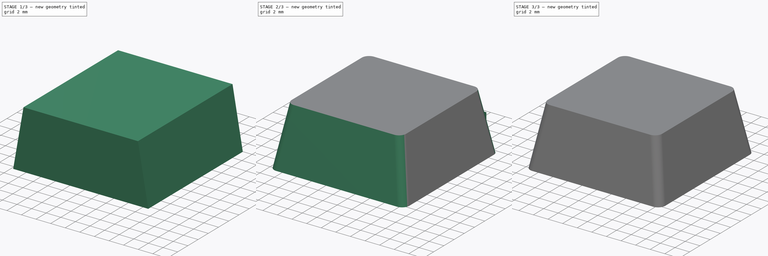
[diagram: build sequence overview — one tinted view per stage of 3, left to right]
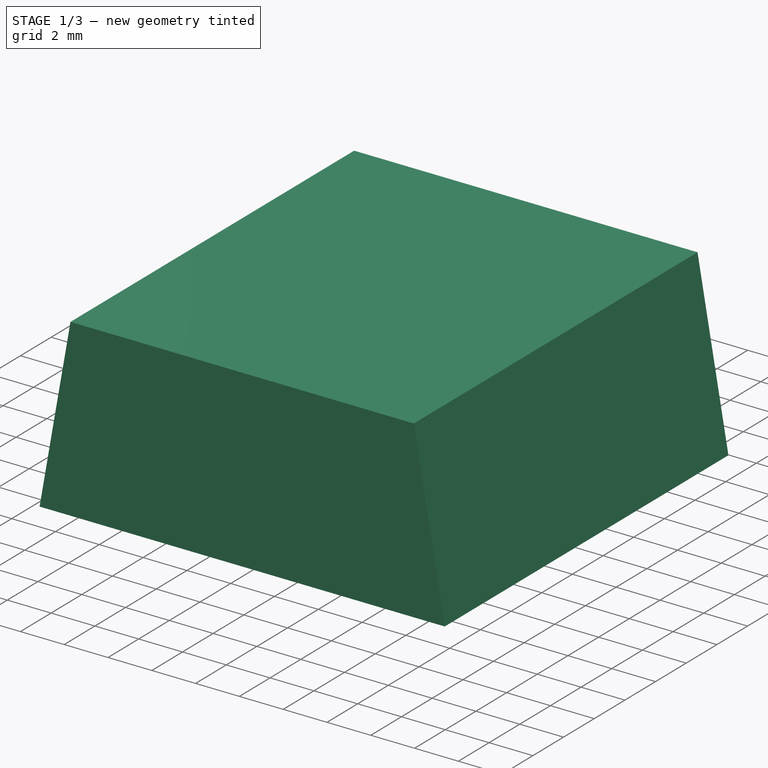
[diagram: stage 1 of 3 — iso view after this stage's code; geometry added in this stage tinted green]
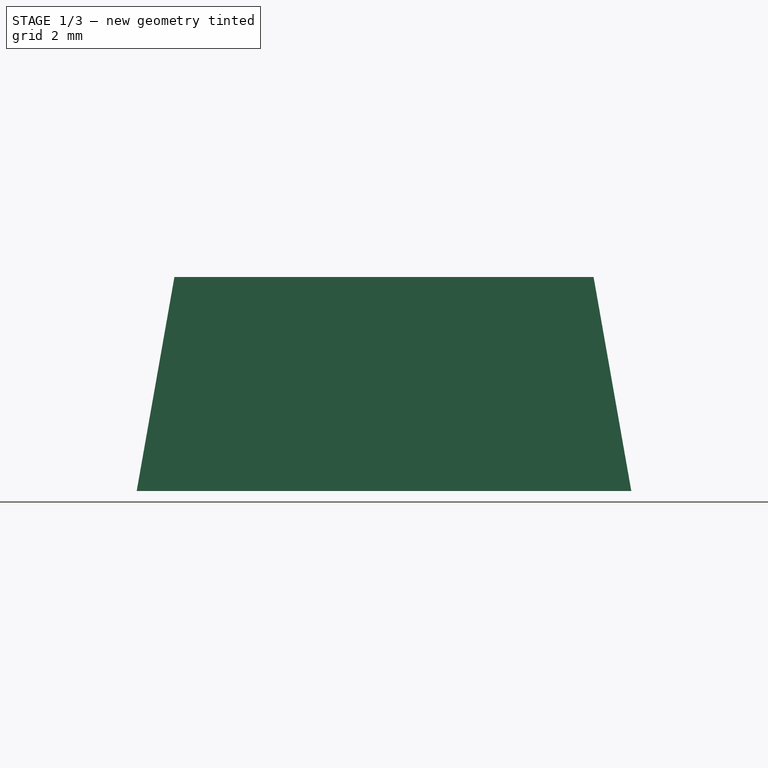
[diagram: stage 1 of 3 — front view after this stage's code; geometry added in this stage tinted green]
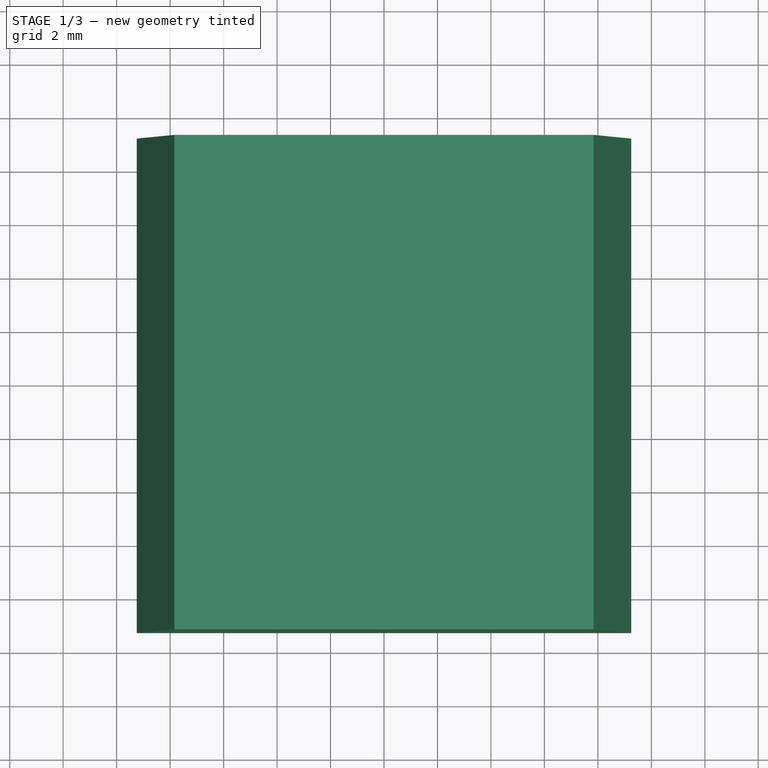
[diagram: stage 1 of 3 — top view after this stage's code; geometry added in this stage tinted green]
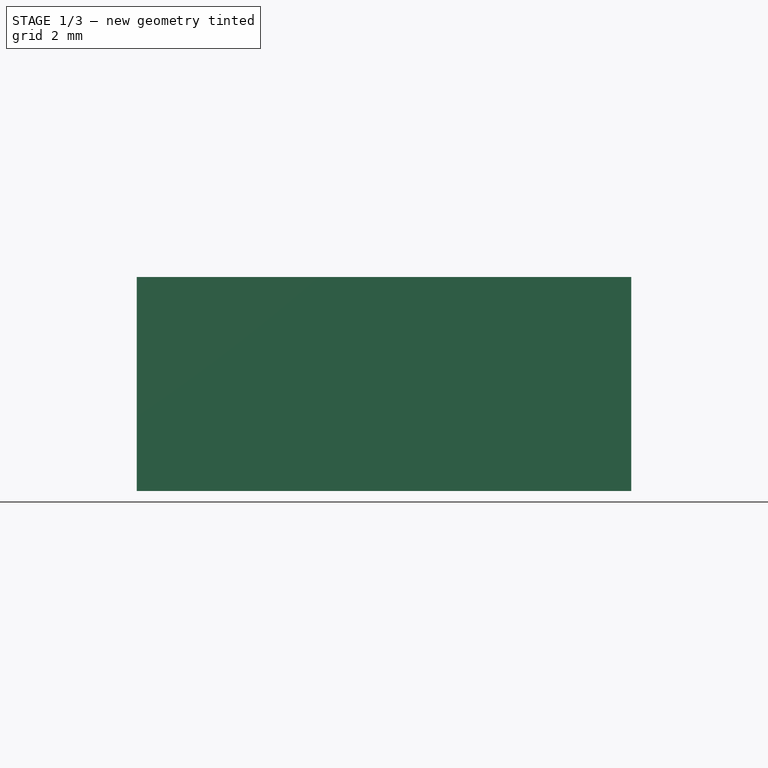
[diagram: stage 1 of 3 — right view after this stage's code; geometry added in this stage tinted green]
FCSTD DOCUMENT  (FreeCAD 1.1R40317 (Git))
Label: keycap
License: Creative Commons Attribution-NonCommercial-ShareAlike 4.0
objects: Sketcher::SketchObject×4, PartDesign::Pocket×3, PartDesign::Fillet×3, App::Point×1, PartDesign::Pad×1, PartDesign::Body×1
note: 30 computed .brp shape members not serialized (recipe doc carries the construction recipe); baked Part::Feature solids carry a one-line shape summary decoded from their .brp

FEATURE [App::Point] Origin001
  Role = Origin
FEATURE [Sketcher::SketchObject] Sketch
  ArcFitTolerance = 1e-06
  AttachmentSupport = -> [XY_Plane]
  ExternalTypes = [0]
  FullyConstrained = true
  MakeInternals = false
  MapMode = 5
  sketch-geometry (5):
    g0: LineSegment StartX=-9.25 StartY=9.25 StartZ=0 EndX=-9.25 EndY=-9.25 EndZ=0
    g1: LineSegment StartX=-9.25 StartY=-9.25 StartZ=0 EndX=9.25 EndY=-9.25 EndZ=0
    g2: LineSegment StartX=9.25 StartY=-9.25 StartZ=0 EndX=9.25 EndY=9.25 EndZ=0
    g3: LineSegment StartX=9.25 StartY=9.25 StartZ=0 EndX=-9.25 EndY=9.25 EndZ=0
    g4: GeomPoint [constr] X=0 Y=0 Z=0
  constraints (12):
    c: Coincident(g0,g1)
    c: Coincident(g1,g2)
    c: Coincident(g2,g3)
    c: Coincident(g3,g0)
    c: Vertical(g0)
    c: Vertical(g2)
    c: Horizontal(g1)
    c: Horizontal(g3)
    c: Symmetric(g2,g0,g4)
    c: Coincident(g4,g-1)
    c: DistanceY(g2,g2) = 18.5
    c: DistanceX(g1,g1) = 18.5
FEATURE [PartDesign::Pad] Pad
  Direction = (0,0,1)
  Length = 8
  Length2 = 10
  Profile = -> Sketch
  ReferenceAxis = -> Sketch [N_Axis]
  Refine = true
  Suppressed = false
  Type = 0
FEATURE [Sketcher::SketchObject] Sketch001
  ArcFitTolerance = 1e-06
  AttachmentSupport = -> [XZ_Plane]
  ExternalTypes = [0]
  FullyConstrained = true
  MakeInternals = false
  MapMode = 5
  Placement = pos=(0,0,0) rot=(1,0,0;1.5708rad)
  sketch-geometry (11):
    g0: LineSegment [constr] StartX=9.25 StartY=-8 StartZ=0 EndX=9.25 EndY=8 EndZ=0
    g1: LineSegment [constr] StartX=9.25 StartY=8 StartZ=0 EndX=-9.25 EndY=8 EndZ=0
    g2: LineSegment [constr] StartX=-9.25 StartY=8 StartZ=0 EndX=-9.25 EndY=-8 EndZ=0
    g3: LineSegment [constr] StartX=-9.25 StartY=-8 StartZ=0 EndX=9.25 EndY=-8 EndZ=0
    g4: GeomPoint [constr] X=0 Y=0 Z=0
    g5: LineSegment StartX=-9.25 StartY=0 StartZ=0 EndX=-7.83938 EndY=8 EndZ=0
    g6: LineSegment StartX=9.25 StartY=3e-16 StartZ=0 EndX=7.83938 EndY=8 EndZ=0
    g7: LineSegment StartX=-7.83938 StartY=8 StartZ=0 EndX=-9.25 EndY=8 EndZ=0
    g8: LineSegment StartX=-9.25 StartY=8 StartZ=0 EndX=-9.25 EndY=0 EndZ=0
    g9: LineSegment StartX=9.25 StartY=3e-16 StartZ=0 EndX=9.25 EndY=8 EndZ=0
    g10: LineSegment StartX=9.25 StartY=8 StartZ=0 EndX=7.83938 EndY=8 EndZ=0
  constraints (26):
    c: Coincident(g0,g1)
    c: Coincident(g1,g2)
    c: Coincident(g2,g3)
    c: Coincident(g3,g0)
    c: Vertical(g0)
    c: Vertical(g2)
    c: Horizontal(g1)
    c: Horizontal(g3)
    c: Symmetric(g2,g0,g4)
    c: Coincident(g4,g-1)
    c: DistanceX(g3,g3) = 18.5
    c: DistanceY(g0,g0) = 16
    c: Symmetric(g2,g2,g5)
    c: PointOnObject(g5,g1)
    c: Symmetric(g0,g0,g6)
    c: PointOnObject(g6,g1)
    c: Coincident(g7,g5)
    c: Coincident(g7,g1)
    c: Coincident(g8,g1)
    c: Coincident(g8,g5)
    c: Coincident(g9,g6)
    c: Coincident(g9,g0)
    c: Coincident(g10,g0)
    c: Coincident(g10,g6)
    c: Angle(g6,g-1) = 1.39626
    c: Angle(g-1,g5) = 1.39626
FEATURE [PartDesign::Pocket] Pocket
  BaseFeature = -> Pad
  Direction = (0,1,0)
  Length = 20
  Length2 = 5
  Midplane = true
  Profile = -> Sketch001
  ReferenceAxis = -> Sketch001 [N_Axis]
  Refine = true
  Suppressed = false
  Type = 0
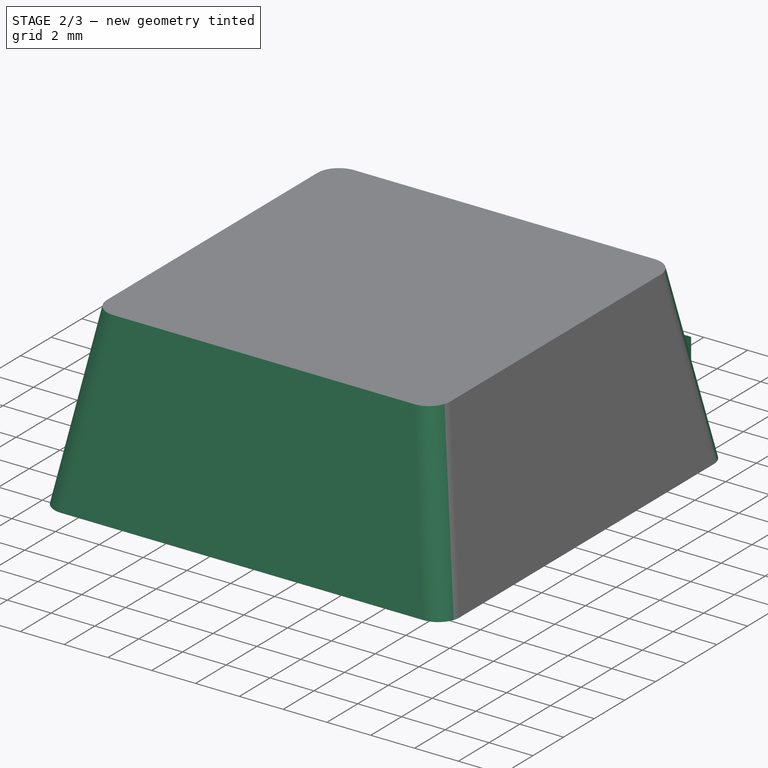
[diagram: stage 2 of 3 — iso view after this stage's code; geometry added in this stage tinted green]
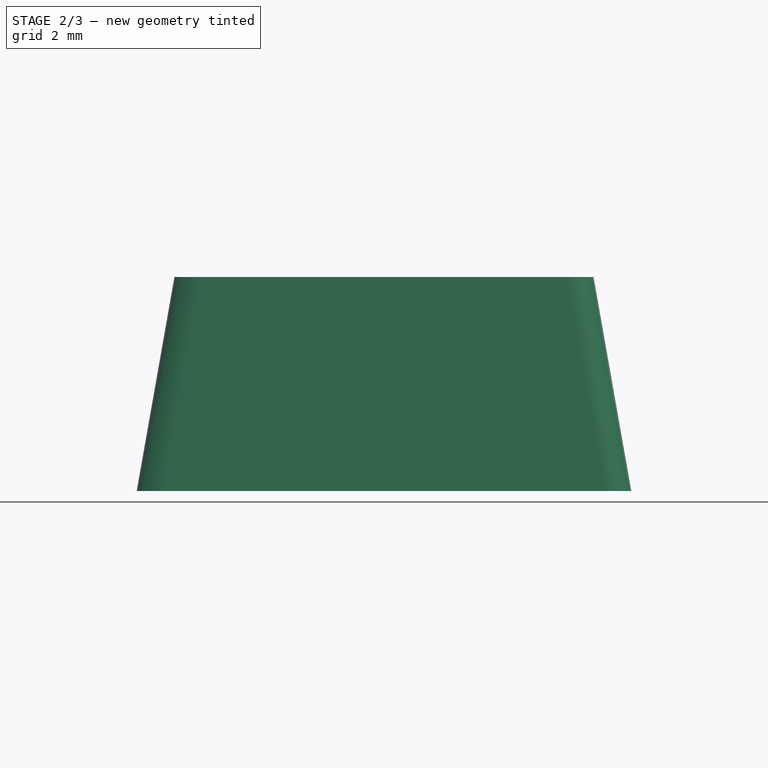
[diagram: stage 2 of 3 — front view after this stage's code; geometry added in this stage tinted green]
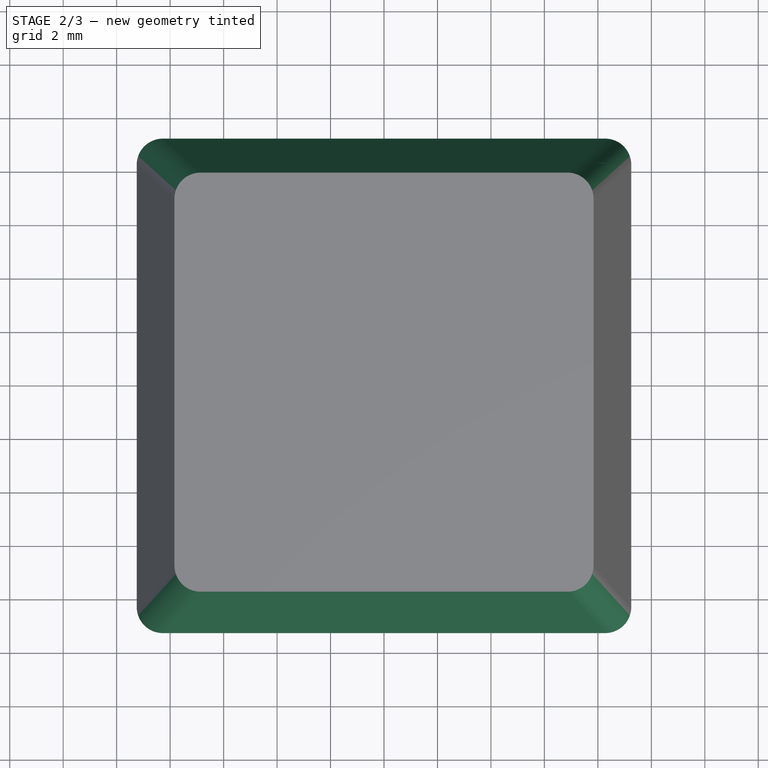
[diagram: stage 2 of 3 — top view after this stage's code; geometry added in this stage tinted green]
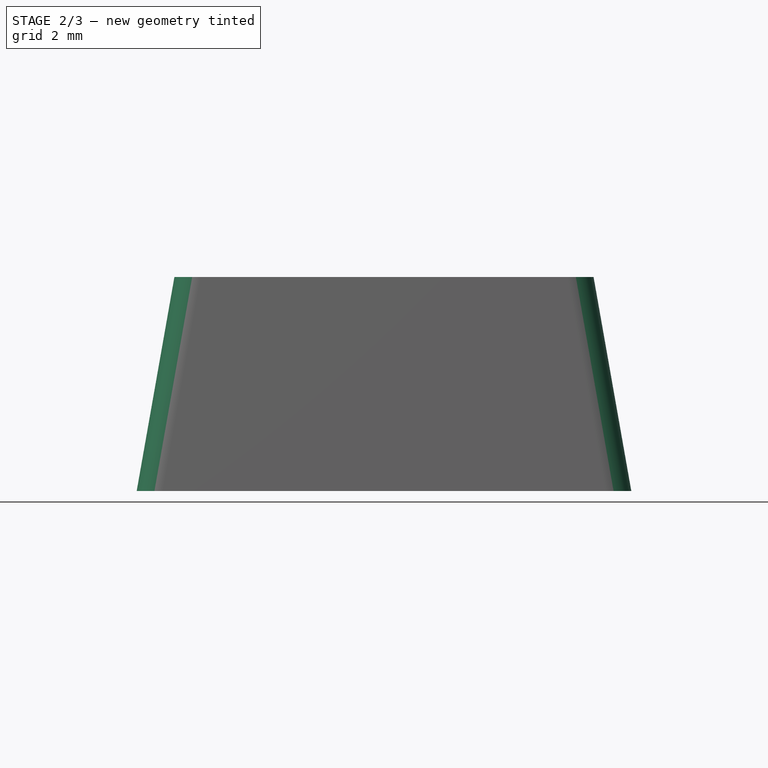
[diagram: stage 2 of 3 — right view after this stage's code; geometry added in this stage tinted green]
FEATURE [Sketcher::SketchObject] Sketch002
  ArcFitTolerance = 1e-06
  AttachmentSupport = -> [YZ_Plane]
  ExternalTypes = [0]
  FullyConstrained = true
  MakeInternals = false
  MapMode = 5
  Placement = pos=(0,0,0) rot=(0.57735,0.57735,0.57735;2.0944rad)
  sketch-geometry (11):
    g0: LineSegment [constr] StartX=9.25 StartY=-8 StartZ=0 EndX=9.25 EndY=8 EndZ=0
    g1: LineSegment [constr] StartX=9.25 StartY=8 StartZ=0 EndX=-9.25 EndY=8 EndZ=0
    g2: LineSegment [constr] StartX=-9.25 StartY=8 StartZ=0 EndX=-9.25 EndY=-8 EndZ=0
    g3: LineSegment [constr] StartX=-9.25 StartY=-8 StartZ=0 EndX=9.25 EndY=-8 EndZ=0
    g4: GeomPoint [constr] X=0 Y=0 Z=0
    g5: LineSegment StartX=-9.25 StartY=0 StartZ=0 EndX=-7.83938 EndY=8 EndZ=0
    g6: LineSegment StartX=9.25 StartY=0 StartZ=0 EndX=7.83938 EndY=8 EndZ=0
    g7: LineSegment StartX=-7.83938 StartY=8 StartZ=0 EndX=-9.25 EndY=8 EndZ=0
    g8: LineSegment StartX=-9.25 StartY=8 StartZ=0 EndX=-9.25 EndY=0 EndZ=0
    g9: LineSegment StartX=7.83938 StartY=8 StartZ=0 EndX=9.25 EndY=8 EndZ=0
    g10: LineSegment StartX=9.25 StartY=8 StartZ=0 EndX=9.25 EndY=0 EndZ=0
  constraints (26):
    c: Coincident(g0,g1)
    c: Coincident(g1,g2)
    c: Coincident(g2,g3)
    c: Coincident(g3,g0)
    c: Vertical(g0)
    c: Vertical(g2)
    c: Horizontal(g1)
    c: Horizontal(g3)
    c: Symmetric(g2,g0,g4)
    c: Coincident(g4,g-1)
    c: Symmetric(g2,g2,g5)
    c: PointOnObject(g5,g1)
    c: Angle(g-1,g5) = 1.39626
    c: Symmetric(g0,g0,g6)
    c: PointOnObject(g6,g1)
    c: Angle(g6,g-1) = 1.39626
    c: Coincident(g7,g5)
    c: Coincident(g7,g1)
    c: Coincident(g8,g1)
    c: Coincident(g8,g5)
    c: Coincident(g9,g6)
    c: Coincident(g9,g0)
    c: Coincident(g10,g0)
    c: Coincident(g10,g6)
    c: DistanceY(g2,g2) = 16
    c: DistanceX(g3,g3) = 18.5
FEATURE [PartDesign::Pocket] Pocket001
  BaseFeature = -> Pocket
  Direction = (-1,0,0)
  Length = 20
  Length2 = 5
  Midplane = true
  Profile = -> Sketch002
  ReferenceAxis = -> Sketch002 [N_Axis]
  Refine = true
  Suppressed = false
  Type = 0
FEATURE [Sketcher::SketchObject] Sketch003
  ArcFitTolerance = 1e-06
  AttachmentSupport = -> [Pocket001]
  ExternalTypes = [0]
  FullyConstrained = true
  MakeInternals = false
  MapMode = 5
  Placement = pos=(0,0,0) rot=(1,0,0;3.14159rad)
  sketch-geometry (27):
    g0: Circle CenterX=0 CenterY=0 CenterZ=0 NormalX=0 NormalY=0 NormalZ=1 AngleXU=0 Radius=2.75
    g1: LineSegment [constr] StartX=-2.25 StartY=0.75 StartZ=0 EndX=-2.25 EndY=-0.75 EndZ=0
    g2: LineSegment [constr] StartX=-2.25 StartY=-0.75 StartZ=0 EndX=2.25 EndY=-0.75 EndZ=0
    g3: LineSegment [constr] StartX=2.25 StartY=-0.75 StartZ=0 EndX=2.25 EndY=0.75 EndZ=0
    g4: LineSegment [constr] StartX=2.25 StartY=0.75 StartZ=0 EndX=-2.25 EndY=0.75 EndZ=0
    g5: GeomPoint [constr] X=0 Y=0 Z=0
    g6: LineSegment [constr] StartX=-0.75 StartY=2.25 StartZ=0 EndX=-0.75 EndY=-2.25 EndZ=0
    g7: LineSegment [constr] StartX=-0.75 StartY=-2.25 StartZ=0 EndX=0.75 EndY=-2.25 EndZ=0
    g8: LineSegment [constr] StartX=0.75 StartY=2.25 StartZ=0 EndX=-0.75 EndY=2.25 EndZ=0
    g9: GeomPoint [constr] X=0 Y=0 Z=0
    g10: LineSegment StartX=-0.75 StartY=2.25 StartZ=0 EndX=-0.75 EndY=0.75 EndZ=0
    g11: LineSegment StartX=-0.75 StartY=0.75 StartZ=0 EndX=-2.25 EndY=0.75 EndZ=0
    g12: LineSegment StartX=-2.25 StartY=0.75 StartZ=0 EndX=-2.25 EndY=-0.75 EndZ=0
    g13: LineSegment StartX=-2.25 StartY=-0.75 StartZ=0 EndX=-0.75 EndY=-0.75 EndZ=0
    g14: LineSegment StartX=-0.75 StartY=-0.75 StartZ=0 EndX=-0.75 EndY=-2.25 EndZ=0
    g15: LineSegment StartX=-0.75 StartY=-2.25 StartZ=0 EndX=0.75 EndY=-2.25 EndZ=0
    g16: LineSegment StartX=0.75 StartY=-2.25 StartZ=0 EndX=0.75 EndY=-0.75 EndZ=0
    g17: LineSegment StartX=0.75 StartY=-0.75 StartZ=0 EndX=2.25 EndY=-0.75 EndZ=0
    g18: LineSegment StartX=2.25 StartY=-0.75 StartZ=0 EndX=2.25 EndY=0.75 EndZ=0
    g19: LineSegment StartX=2.25 StartY=0.75 StartZ=0 EndX=0.75 EndY=0.75 EndZ=0
    g20: LineSegment StartX=0.75 StartY=0.75 StartZ=0 EndX=0.75 EndY=2.25 EndZ=0
    g21: LineSegment StartX=0.75 StartY=2.25 StartZ=0 EndX=-0.75 EndY=2.25 EndZ=0
    g22: LineSegment StartX=8.25 StartY=-8.25 StartZ=0 EndX=8.25 EndY=8.25 EndZ=0
    g23: LineSegment StartX=8.25 StartY=8.25 StartZ=0 EndX=-8.25 EndY=8.25 EndZ=0
    g24: LineSegment StartX=-8.25 StartY=8.25 StartZ=0 EndX=-8.25 EndY=-8.25 EndZ=0
    g25: LineSegment StartX=-8.25 StartY=-8.25 StartZ=0 EndX=8.25 EndY=-8.25 EndZ=0
    g26: GeomPoint [constr] X=0 Y=0 Z=0
  constraints (64):
    c: Coincident(g0,g-1)
    c: Diameter(g0) = 5.5
    c: Coincident(g1,g2)
    c: Coincident(g2,g3)
    c: Coincident(g3,g4)
    c: Coincident(g4,g1)
    c: Vertical(g1)
    c: Vertical(g3)
    c: Horizontal(g2)
    c: Horizontal(g4)
    c: Symmetric(g3,g1,g5)
    c: Coincident(g5,g0)
    c: DistanceX(g4,g4) = 4.5
    c: DistanceY(g3,g3) = 1.5
    c: Coincident(g6,g7)
    c: Coincident(g8,g6)
    c: Vertical(g6)
    c: Horizontal(g7)
    c: Horizontal(g8)
    c: Symmetric(g7,g6,g9)
    c: Coincident(g9,g0)
    c: DistanceY(g7,g8) = 4.5
    c: DistanceX(g7,g7) = 1.5
    c: Coincident(g10,g6)
    c: PointOnObject(g10,g6)
    c: Coincident(g11,g10)
    c: Coincident(g11,g1)
    c: Horizontal(g11)
    c: Coincident(g12,g1)
    c: Coincident(g12,g1)
    c: Coincident(g13,g1)
    c: PointOnObject(g13,g2)
    c: Coincident(g14,g13)
    c: Coincident(g14,g6)
    c: Vertical(g14)
    c: Coincident(g15,g6)
    c: Coincident(g15,g7)
    c: Coincident(g16,g7)
    c: Coincident(g17,g16)
    c: Coincident(g17,g2)
    c: Horizontal(g17)
    c: Coincident(g18,g2)
    c: Coincident(g18,g3)
    c: Coincident(g19,g3)
    c: PointOnObject(g19,g4)
    c: Coincident(g20,g8)
    c: Vertical(g20)
    c: Coincident(g21,g8)
    c: Coincident(g21,g6)
    c: Equal(g19,g17)
    c: Coincident(g19,g20)
    c: Equal(g21,g15)
    c: Coincident(g22,g23)
    c: Coincident(g23,g24)
    c: Coincident(g24,g25)
    c: Coincident(g25,g22)
    c: Vertical(g22)
    c: Vertical(g24)
    c: Horizontal(g23)
    c: Horizontal(g25)
    c: Symmetric(g24,g22,g26)
    c: Coincident(g26,g0)
    c: DistanceX(g23,g23) = 16.5
    c: DistanceY(g24,g24) = 16.5
FEATURE [PartDesign::Pocket] Pocket002
  BaseFeature = -> Pocket001
  Direction = (0,0,1)
  Length = 5
  Length2 = 5
  Profile = -> Sketch003
  ReferenceAxis = -> Sketch003 [N_Axis]
  Refine = true
  Suppressed = false
  Type = 0
FEATURE [PartDesign::Fillet] Fillet
  Base = -> Pocket002 [Edge11,Edge12,Edge14,Edge20,Edge9,Vertex1,Vertex3,Vertex4,Vertex2]
  BaseFeature = -> Pocket002
  Radius = 1
  Refine = true
  SupportTransform = false
  Suppressed = false
  UseAllEdges = false
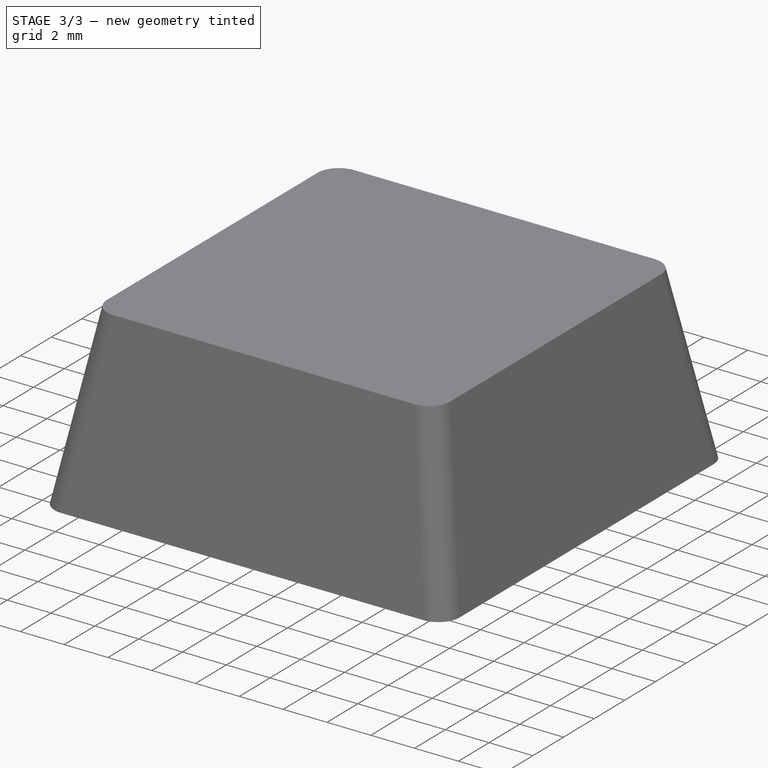
[diagram: stage 3 of 3 — iso view after this stage's code; geometry added in this stage tinted green]
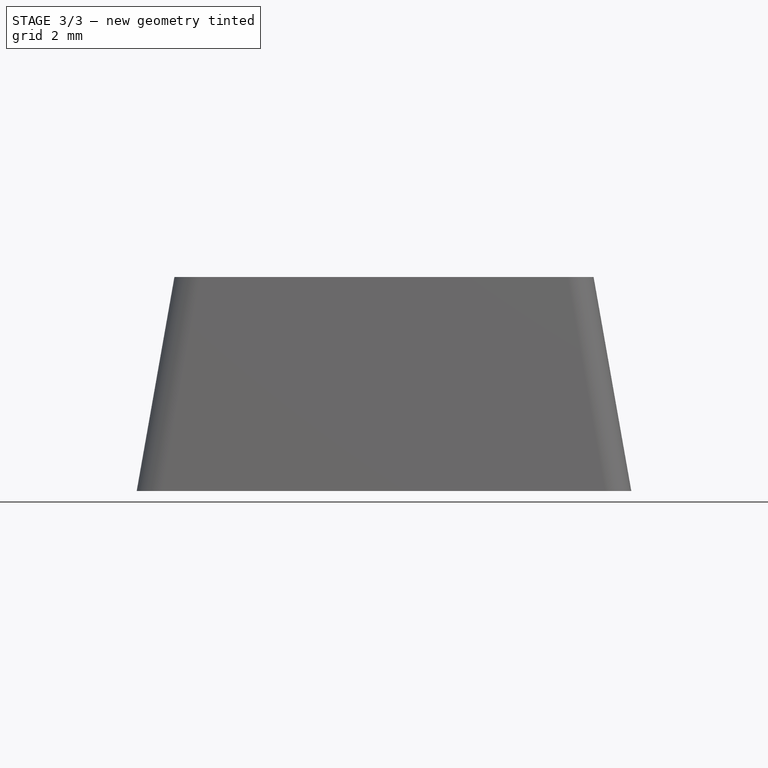
[diagram: stage 3 of 3 — front view after this stage's code; geometry added in this stage tinted green]
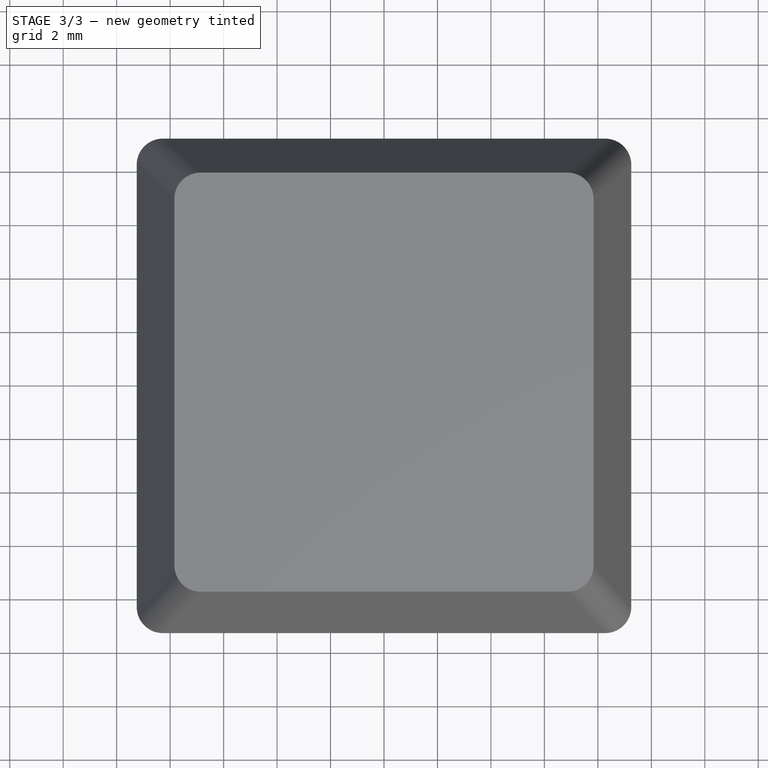
[diagram: stage 3 of 3 — top view after this stage's code; geometry added in this stage tinted green]
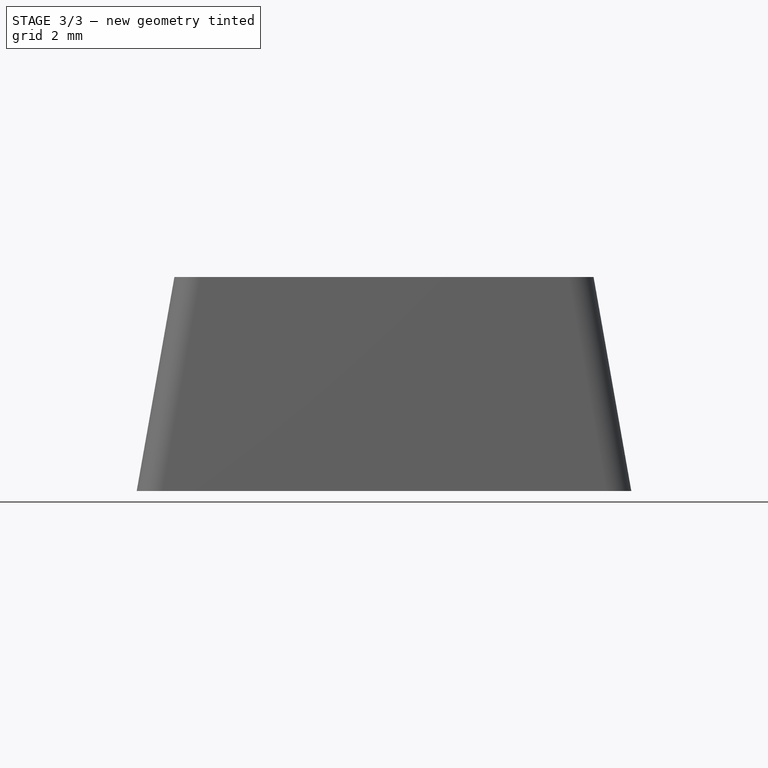
[diagram: stage 3 of 3 — right view after this stage's code; geometry added in this stage tinted green]
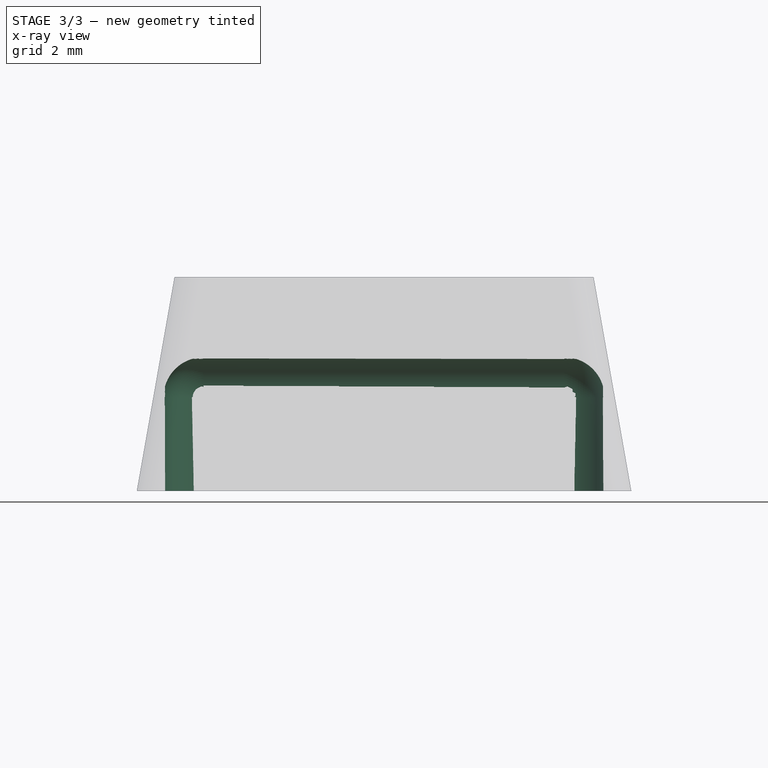
[diagram: stage 3 of 3 — x-ray composite at the front view; earlier geometry ghosted, this stage's added geometry solid]
FEATURE [PartDesign::Fillet] Fillet001
  Base = -> Fillet [Edge32,Edge36,Edge31]
  BaseFeature = -> Fillet
  Radius = 1.5
  Refine = true
  SupportTransform = false
  Suppressed = false
  UseAllEdges = false
FEATURE [PartDesign::Fillet] Fillet002
  Base = -> Fillet001 [Edge26,Edge22,Edge28,Edge25,Edge27]
  BaseFeature = -> Fillet001
  Radius = 1.5
  Refine = true
  SupportTransform = false
  Suppressed = false
  UseAllEdges = false
FEATURE [PartDesign::Body] Body
  AllowCompound = false
  Group = -> [Sketch,Pad,Sketch001,Pocket,Sketch002,Pocket001,Sketch003,Pocket002,Fillet,Fillet001,Fillet002]
  Origin = -> Origin
  Tip = -> Fillet002
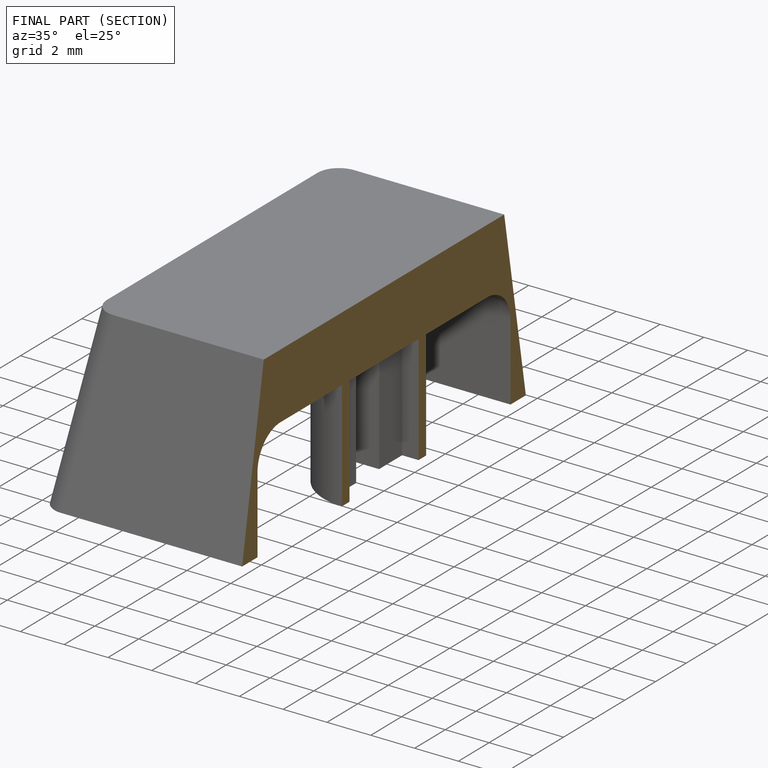
[diagram: finished part — half-section view (interior)]
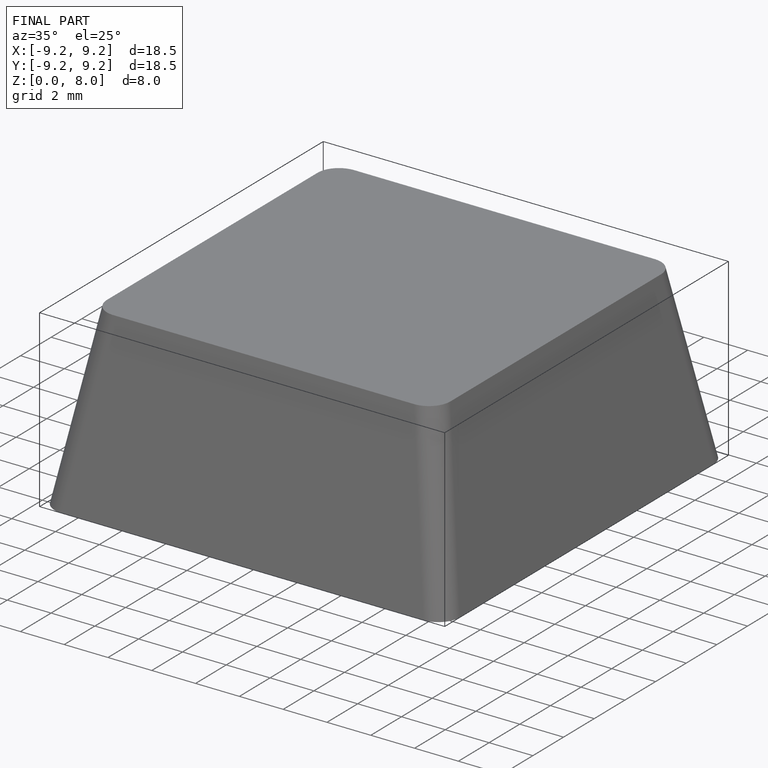
[diagram: finished part — iso view with bounding-box wireframe]
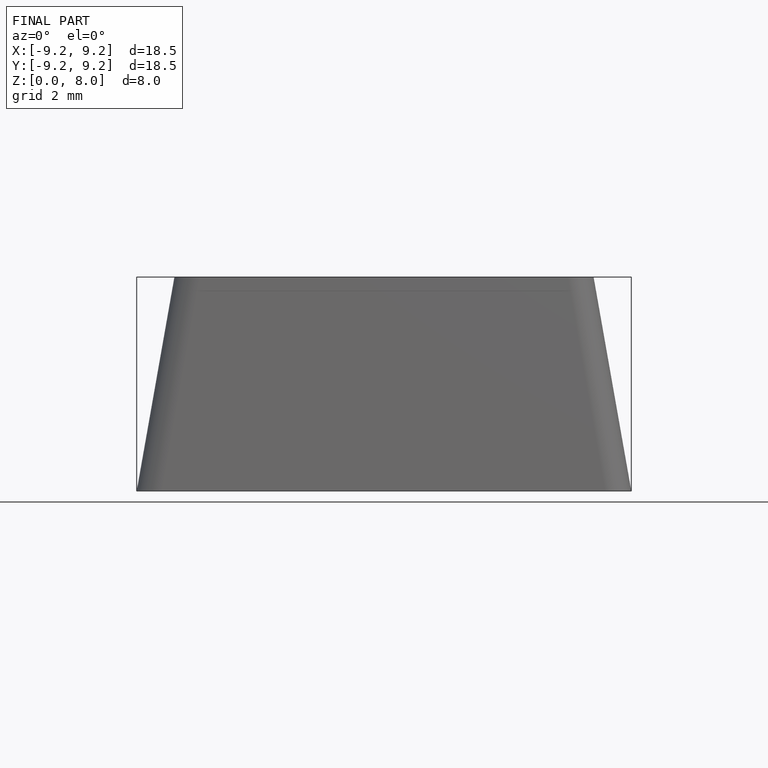
[diagram: finished part — front view with bounding-box wireframe]
